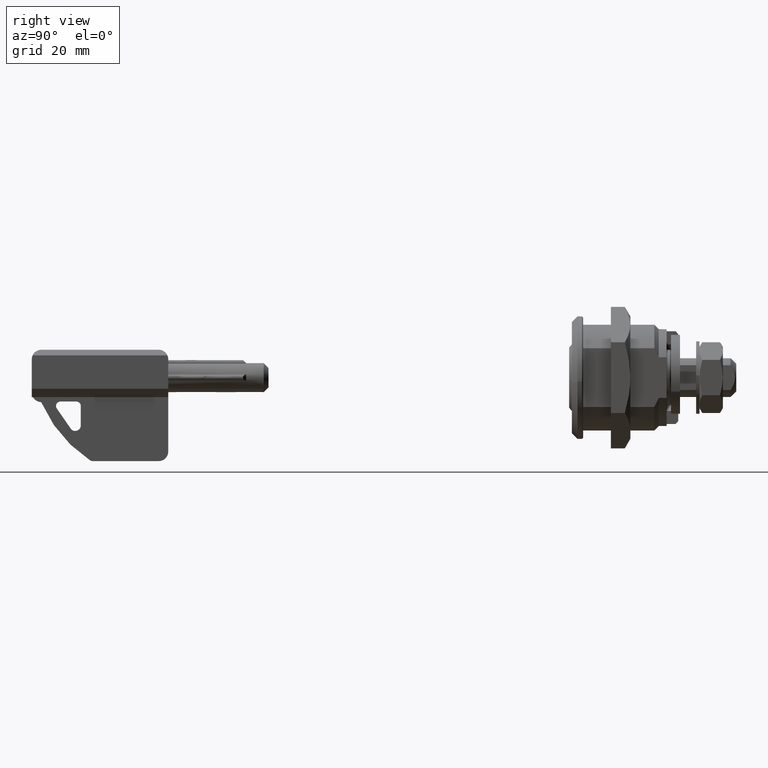
[diagram: clean part render]
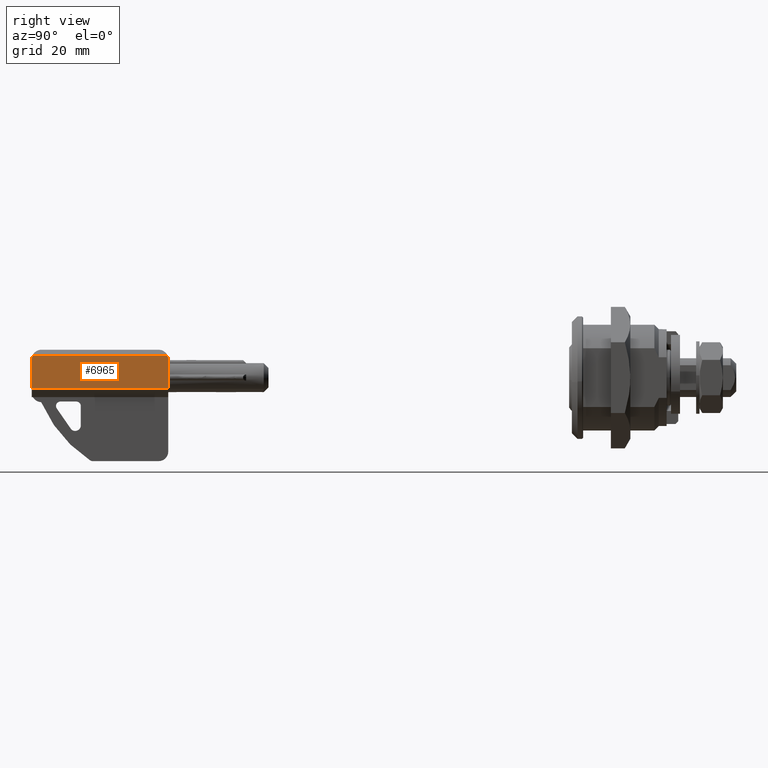
[diagram: same view with one face highlighted and labeled with its STEP entity id]
A machine part, right view. The second image highlights one B-rep face of the part: STEP entity #6965.
In plain terms, the highlighted face is a freeform B-spline surface patch.
Its self-contained STEP definition (entity closure, byte-faithful):
#6171=CARTESIAN_POINT('',(3.999999999999994,-99.0,-1.999999999999970));
#6172=VERTEX_POINT('',#6171);
#6173=CARTESIAN_POINT('',(3.999999999999994,-99.0,3.300000000000000));
#6174=VERTEX_POINT('',#6173);
#6175=CARTESIAN_POINT('',(3.999999999999994,-99.0,-1.999999999999970));
#6176=CARTESIAN_POINT('',(3.999999999999994,-99.0,3.300000000000000));
#6177=QUASI_UNIFORM_CURVE('',1,(#6175,#6176),.UNSPECIFIED.,.F.,.U.);
#6178=EDGE_CURVE('',#6172,#6174,#6177,.T.);
#6228=CARTESIAN_POINT('',(3.999999999999994,-98.849193338482991,4.0));
#6229=VERTEX_POINT('',#6228);
#6273=CARTESIAN_POINT('',(3.999999999999994,-98.849193338482962,3.999999999999989));
#6274=CARTESIAN_POINT('',(3.999999999999994,-99.0,3.666244749398503));
#6275=CARTESIAN_POINT('',(3.999999999999994,-99.0,3.300000000000000));
#6283=(BOUNDED_CURVE()B_SPLINE_CURVE(2,(#6273,#6274,#6275),.UNSPECIFIED.,.F.,.U.)CURVE()GEOMETRIC_REPRESENTATION_ITEM()QUASI_UNIFORM_CURVE()RATIONAL_B_SPLINE_CURVE((1.0,0.977571020209691,1.0))REPRESENTATION_ITEM(''));
#6284=EDGE_CURVE('',#6229,#6174,#6283,.T.);
#6303=CARTESIAN_POINT('',(3.999999999999996,-74.500000000000000,3.300000000000000));
#6304=VERTEX_POINT('',#6303);
#6305=CARTESIAN_POINT('',(3.999999999999996,-74.650806661516995,4.0));
#6306=VERTEX_POINT('',#6305);
#6307=CARTESIAN_POINT('',(3.999999999999996,-74.500000000000014,3.300000000000000));
#6308=CARTESIAN_POINT('',(3.999999999999996,-74.500000000000014,3.666244749398501));
#6309=CARTESIAN_POINT('',(3.999999999999996,-74.650806661517038,3.999999999999984));
#6317=(BOUNDED_CURVE()B_SPLINE_CURVE(2,(#6307,#6308,#6309),.UNSPECIFIED.,.F.,.U.)CURVE()GEOMETRIC_REPRESENTATION_ITEM()QUASI_UNIFORM_CURVE()RATIONAL_B_SPLINE_CURVE((1.0,0.977571020209691,1.0))REPRESENTATION_ITEM(''));
#6318=EDGE_CURVE('',#6304,#6306,#6317,.T.);
#6377=CARTESIAN_POINT('',(3.999999999999994,-98.849193338482991,4.0));
#6378=CARTESIAN_POINT('',(3.999999999999996,-74.650806661516995,4.0));
#6379=QUASI_UNIFORM_CURVE('',1,(#6377,#6378),.UNSPECIFIED.,.F.,.U.);
#6380=EDGE_CURVE('',#6229,#6306,#6379,.T.);
#6411=CARTESIAN_POINT('',(3.999999999999996,-74.500000000000000,-1.999999999999970));
#6412=VERTEX_POINT('',#6411);
#6418=CARTESIAN_POINT('',(3.999999999999994,-99.0,-1.999999999999970));
#6419=CARTESIAN_POINT('',(3.999999999999996,-74.500000000000000,-1.999999999999970));
#6420=QUASI_UNIFORM_CURVE('',1,(#6418,#6419),.UNSPECIFIED.,.F.,.U.);
#6421=EDGE_CURVE('',#6172,#6412,#6420,.T.);
#6948=CARTESIAN_POINT('',(3.999999999999994,-100.223774952514300,-2.299699988370804));
#6949=CARTESIAN_POINT('',(3.999999999999996,-73.276224390344538,-2.299699988370804));
#6950=CARTESIAN_POINT('',(3.999999999999994,-100.223774952514300,4.299700149303374));
#6951=CARTESIAN_POINT('',(3.999999999999996,-73.276224390344538,4.299700149303374));
#6952=B_SPLINE_SURFACE_WITH_KNOTS('',1,1,((#6948,#6950),(#6949,#6951)),.UNSPECIFIED.,.F.,.F.,.U.,(2,2),(2,2),(0.0,26.947550562169710),(0.0,6.599400137674178),.UNSPECIFIED.);
#6953=CARTESIAN_POINT('',(3.999999999999996,-74.500000000000000,3.300000000000000));
#6954=CARTESIAN_POINT('',(3.999999999999996,-74.500000000000000,-1.999999999999970));
#6955=QUASI_UNIFORM_CURVE('',1,(#6953,#6954),.UNSPECIFIED.,.F.,.U.);
#6956=EDGE_CURVE('',#6304,#6412,#6955,.T.);
#6957=ORIENTED_EDGE('',*,*,#6956,.F.);
#6958=ORIENTED_EDGE('',*,*,#6318,.T.);
#6959=ORIENTED_EDGE('',*,*,#6380,.F.);
#6960=ORIENTED_EDGE('',*,*,#6284,.T.);
#6961=ORIENTED_EDGE('',*,*,#6178,.F.);
#6962=ORIENTED_EDGE('',*,*,#6421,.T.);
#6963=EDGE_LOOP('',(#6957,#6958,#6959,#6960,#6961,#6962));
#6964=FACE_OUTER_BOUND('',#6963,.T.);
#6965=ADVANCED_FACE('',(#6964),#6952,.T.);